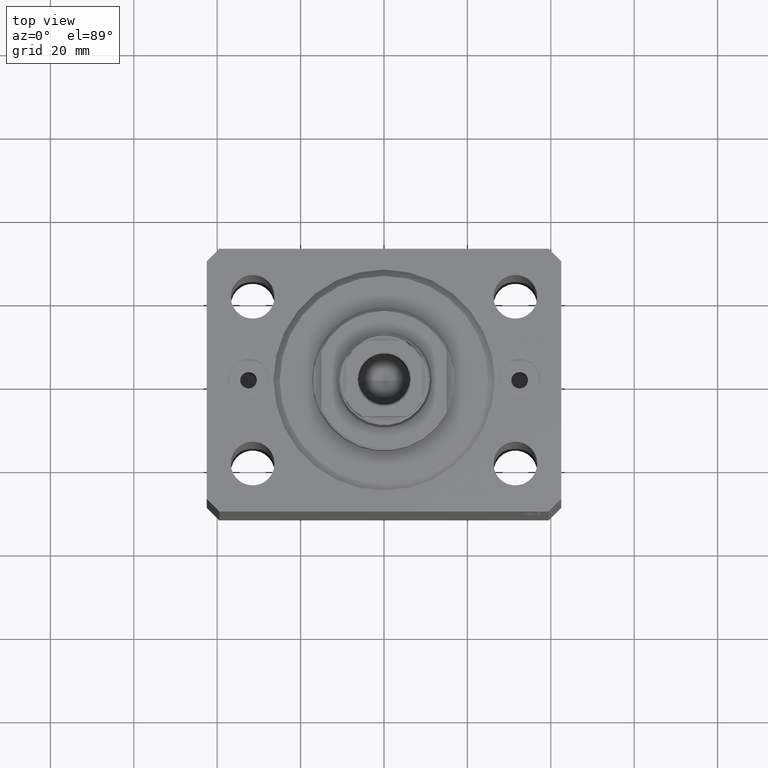
[diagram: clean part render]
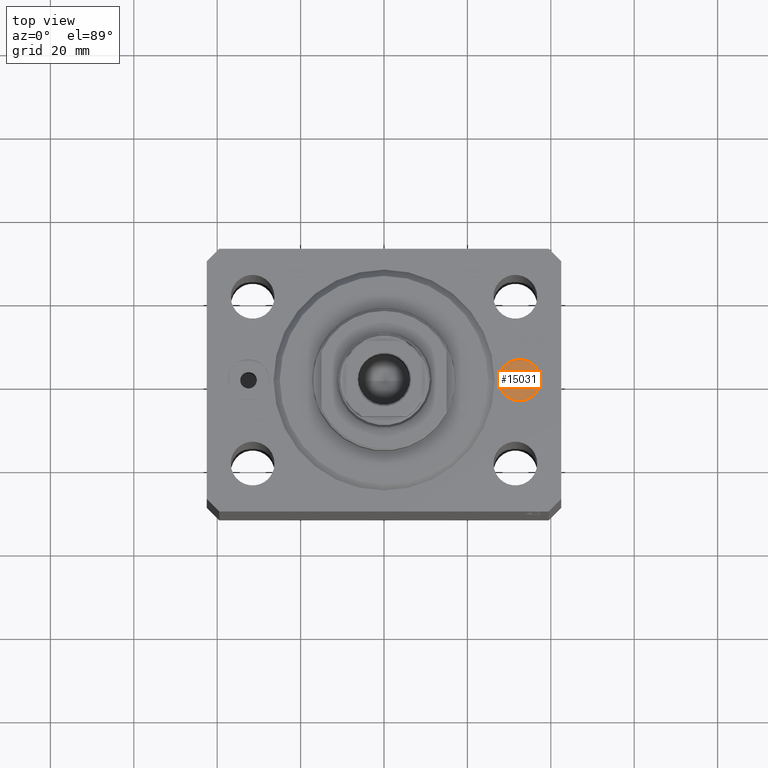
[diagram: same view with one face highlighted and labeled with its STEP entity id]
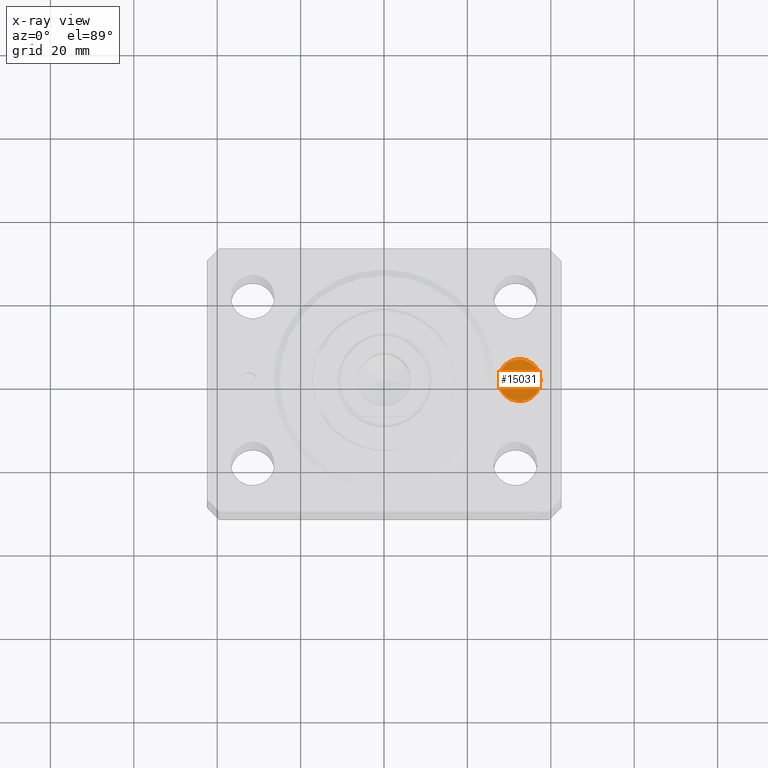
[diagram: x-ray of the same camera — body ghosted, the highlighted face saturated]
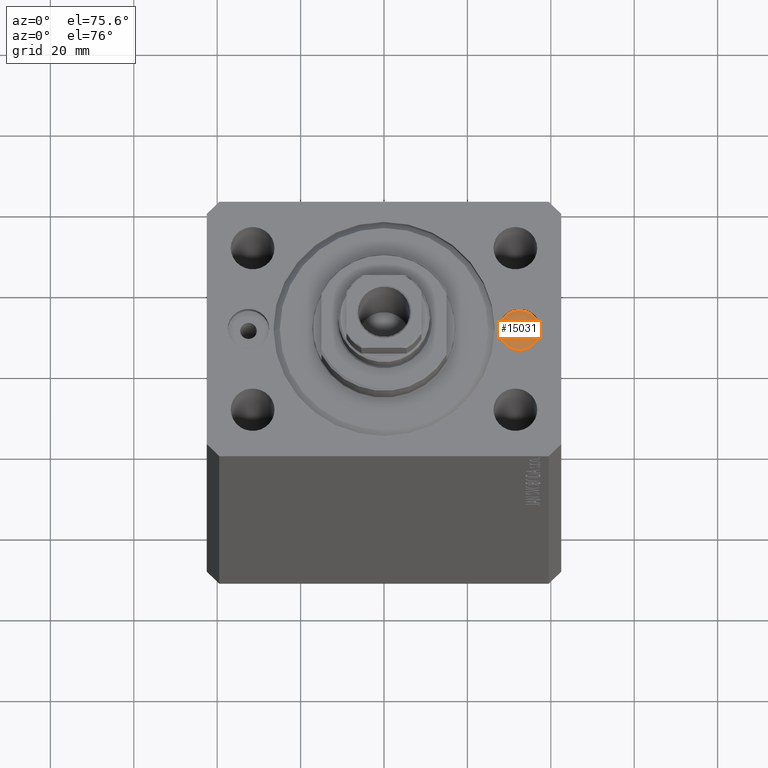
[diagram: same view with one face highlighted and labeled with its STEP entity id]
A machine part, top view. The second image highlights one B-rep face of the part: STEP entity #15031.
The next image is the same camera in x-ray: the body ghosted, the highlighted face saturated — about 0% of this face is hidden behind the body in this view.
A second angle (auxiliary view) of the same face is appended — the face is thin or edge-on in the first view.
In plain terms, the highlighted planar face has unit normal (0, 0, 1).
Its self-contained STEP definition (entity closure, byte-faithful):
#1301 = CARTESIAN_POINT ( 'NONE',  ( 30.50000000000000000, 2.449293598294711345E-16, -1.899999999999999911 ) ) ;
#1646 = CARTESIAN_POINT ( 'NONE',  ( 27.50000000000000355, 6.123233995736762338E-16, -1.899999999999999911 ) ) ;
#2597 = EDGE_LOOP ( 'NONE', ( #37131, #20213 ) ) ;
#3507 = AXIS2_PLACEMENT_3D ( 'NONE', #39164, #25933, #25719 ) ;
#4553 = CIRCLE ( 'NONE', #41120, 4.999999999999997335 ) ;
#4573 = CARTESIAN_POINT ( 'NONE',  ( 34.50000000000000000, 0.000000000000000000, -1.899999999999999911 ) ) ;
#6038 = AXIS2_PLACEMENT_3D ( 'NONE', #32560, #13049, #29427 ) ;
#8123 = AXIS2_PLACEMENT_3D ( 'NONE', #28319, #21802, #37962 ) ;
#9271 = AXIS2_PLACEMENT_3D ( 'NONE', #26357, #22769, #23435 ) ;
#9606 = CIRCLE ( 'NONE', #6038, 2.000000000000001776 ) ;
#10641 = VERTEX_POINT ( 'NONE', #1301 ) ;
#13049 = DIRECTION ( 'NONE',  ( 0.000000000000000000, 0.000000000000000000, 1.000000000000000000 ) ) ;
#14085 = EDGE_CURVE ( 'NONE', #10641, #24260, #18566, .T. ) ;
#15031 = ADVANCED_FACE ( 'NONE', ( #43828, #39589 ), #36878, .T. ) ;
#15875 = VERTEX_POINT ( 'NONE', #31800 ) ;
#18078 = EDGE_CURVE ( 'NONE', #32337, #15875, #4553, .T. ) ;
#18407 = ORIENTED_EDGE ( 'NONE', *, *, #14085, .F. ) ;
#18566 = CIRCLE ( 'NONE', #3507, 2.000000000000001776 ) ;
#18684 = EDGE_CURVE ( 'NONE', #24260, #10641, #9606, .T. ) ;
#19447 = CARTESIAN_POINT ( 'NONE',  ( 32.50000000000000000, 0.000000000000000000, -1.899999999999999911 ) ) ;
#20213 = ORIENTED_EDGE ( 'NONE', *, *, #18078, .F. ) ;
#21724 = CIRCLE ( 'NONE', #8123, 4.999999999999997335 ) ;
#21802 = DIRECTION ( 'NONE',  ( 0.000000000000000000, -0.000000000000000000, -1.000000000000000000 ) ) ;
#22406 = EDGE_CURVE ( 'NONE', #15875, #32337, #21724, .T. ) ;
#22769 = DIRECTION ( 'NONE',  ( -0.000000000000000000, 0.000000000000000000, 1.000000000000000000 ) ) ;
#23435 = DIRECTION ( 'NONE',  ( 1.000000000000000000, 0.000000000000000000, 0.000000000000000000 ) ) ;
#23465 = DIRECTION ( 'NONE',  ( 0.000000000000000000, -0.000000000000000000, -1.000000000000000000 ) ) ;
#24260 = VERTEX_POINT ( 'NONE', #4573 ) ;
#25719 = DIRECTION ( 'NONE',  ( 1.000000000000000000, 0.000000000000000000, 0.000000000000000000 ) ) ;
#25933 = DIRECTION ( 'NONE',  ( 0.000000000000000000, 0.000000000000000000, 1.000000000000000000 ) ) ;
#26357 = CARTESIAN_POINT ( 'NONE',  ( 0.000000000000000000, 0.000000000000000000, -1.899999999999999911 ) ) ;
#26387 = DIRECTION ( 'NONE',  ( 1.000000000000000000, 0.000000000000000000, 0.000000000000000000 ) ) ;
#28319 = CARTESIAN_POINT ( 'NONE',  ( 32.50000000000000000, 0.000000000000000000, -1.899999999999999911 ) ) ;
#29427 = DIRECTION ( 'NONE',  ( 1.000000000000000000, 0.000000000000000000, 0.000000000000000000 ) ) ;
#31709 = ORIENTED_EDGE ( 'NONE', *, *, #18684, .F. ) ;
#31800 = CARTESIAN_POINT ( 'NONE',  ( 37.50000000000000000, 0.000000000000000000, -1.899999999999999911 ) ) ;
#32337 = VERTEX_POINT ( 'NONE', #1646 ) ;
#32560 = CARTESIAN_POINT ( 'NONE',  ( 32.50000000000000000, 0.000000000000000000, -1.899999999999999911 ) ) ;
#36878 = PLANE ( 'NONE',  #9271 ) ;
#37131 = ORIENTED_EDGE ( 'NONE', *, *, #22406, .F. ) ;
#37962 = DIRECTION ( 'NONE',  ( 1.000000000000000000, 0.000000000000000000, 0.000000000000000000 ) ) ;
#39164 = CARTESIAN_POINT ( 'NONE',  ( 32.50000000000000000, 0.000000000000000000, -1.899999999999999911 ) ) ;
#39589 = FACE_OUTER_BOUND ( 'NONE', #2597, .T. ) ;
#41120 = AXIS2_PLACEMENT_3D ( 'NONE', #19447, #23465, #26387 ) ;
#41793 = EDGE_LOOP ( 'NONE', ( #31709, #18407 ) ) ;
#43828 = FACE_BOUND ( 'NONE', #41793, .T. ) ;